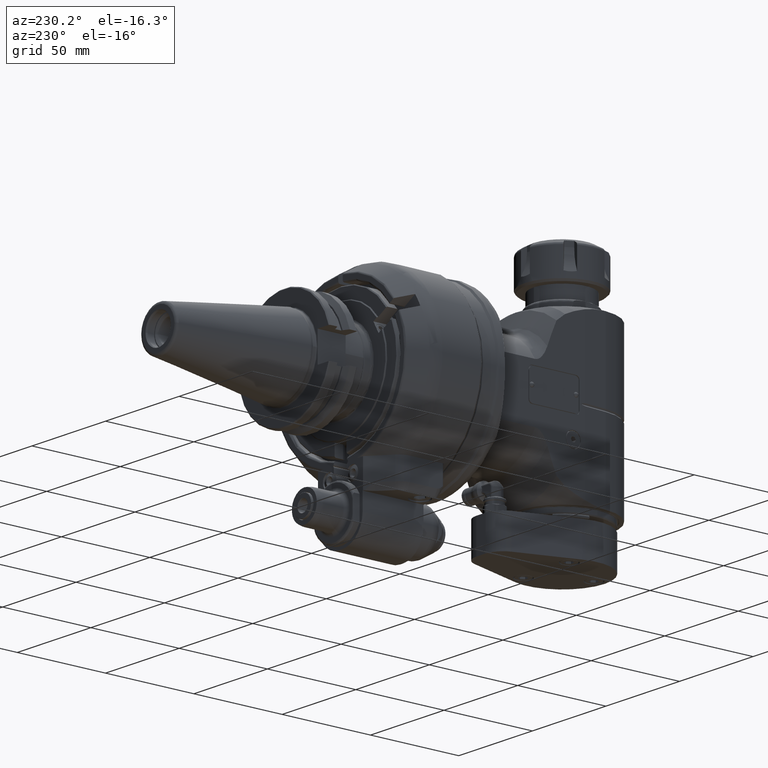
[diagram: clean part render]
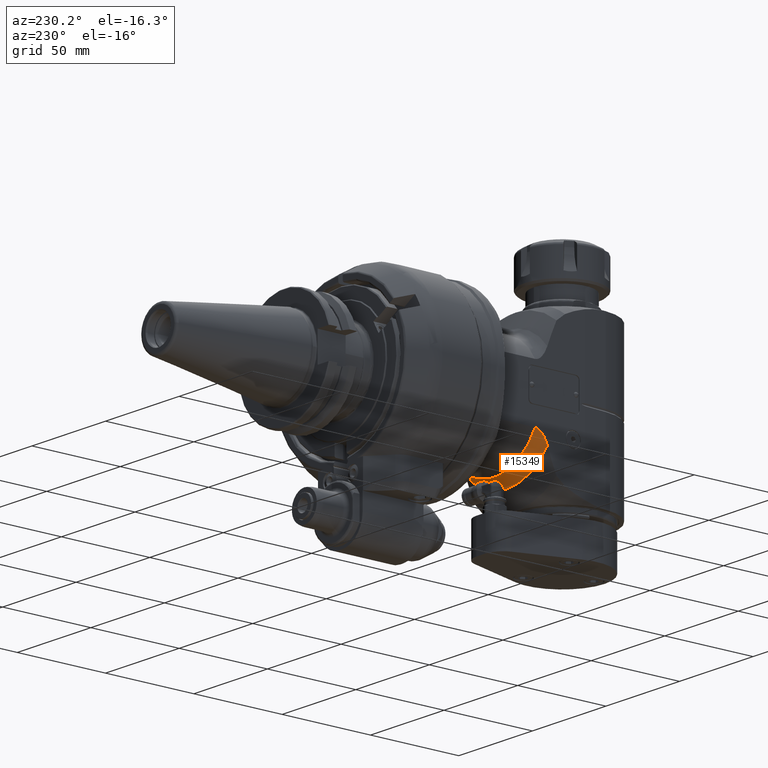
[diagram: same view with one face highlighted and labeled with its STEP entity id]
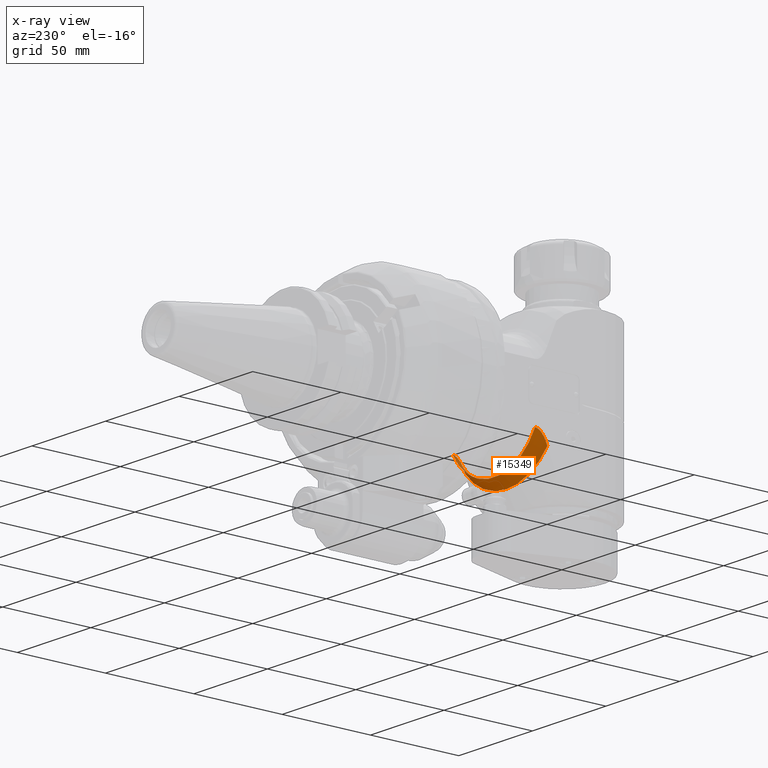
[diagram: x-ray of the same camera — body ghosted, the highlighted face saturated]
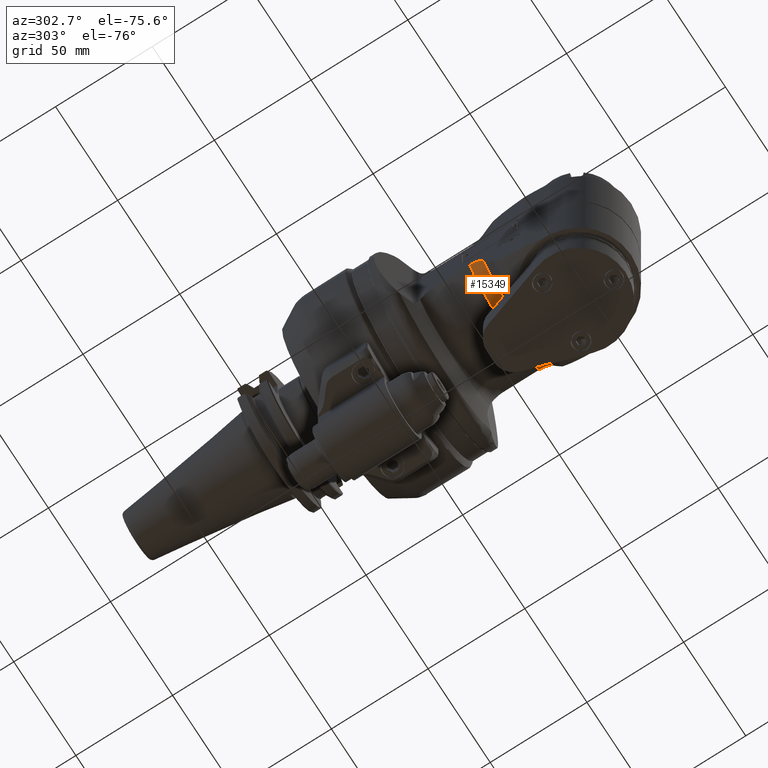
[diagram: same view with one face highlighted and labeled with its STEP entity id]
A machine part, auxiliary view. The second image highlights one B-rep face of the part: STEP entity #15349.
The next image is the same camera in x-ray: the body ghosted, the highlighted face saturated — about 5% of this face is hidden behind the body in this view.
A second angle (auxiliary view) of the same face is appended — the face is thin or edge-on in the first view.
In plain terms, the highlighted toroidal blend (fillet) surface has major radius 40 mm and minor (blend) radius 8 mm.
Its self-contained STEP definition (entity closure, byte-faithful):
#279=TOROIDAL_SURFACE('',#16333,40.,8.);
#496=B_SPLINE_CURVE_WITH_KNOTS('',3,(#22772,#22773,#22774,#22775,#22776,
#22777,#22778,#22779,#22780,#22781,#22782,#22783,#22784,#22785),
 .UNSPECIFIED.,.F.,.F.,(4,2,2,2,2,2,4),(-2.93597407218818,-2.82337724519285,
-2.69378102431655,-2.51186335157645,-2.32994567883634,-2.09341832628399,
-1.94886990203757),.UNSPECIFIED.);
#511=B_SPLINE_CURVE_WITH_KNOTS('',3,(#23102,#23103,#23104,#23105,#23106,
#23107,#23108,#23109,#23110,#23111,#23112,#23113,#23114,#23115),
 .UNSPECIFIED.,.F.,.F.,(4,2,2,2,2,2,4),(2.93597407218818,3.04857089918351,
3.17816712005981,3.36008479279991,3.54200246554002,3.77852981809237,3.92307824233879),
 .UNSPECIFIED.);
#1140=CIRCLE('',#16332,32.);
#1141=CIRCLE('',#16334,36.);
#1951=FACE_OUTER_BOUND('',#2846,.T.);
#2846=EDGE_LOOP('',(#10401,#10402,#10403,#10404));
#6207=VERTEX_POINT('',#22767);
#6208=VERTEX_POINT('',#22771);
#6264=VERTEX_POINT('',#23099);
#6265=VERTEX_POINT('',#23101);
#7853=EDGE_CURVE('',#6208,#6207,#496,.T.);
#7927=EDGE_CURVE('',#6264,#6265,#511,.T.);
#7955=EDGE_CURVE('',#6264,#6208,#1140,.T.);
#7956=EDGE_CURVE('',#6207,#6265,#1141,.T.);
#10401=ORIENTED_EDGE('',*,*,#7956,.T.);
#10402=ORIENTED_EDGE('',*,*,#7927,.F.);
#10403=ORIENTED_EDGE('',*,*,#7955,.T.);
#10404=ORIENTED_EDGE('',*,*,#7853,.T.);
#15349=ADVANCED_FACE('',(#1951),#279,.F.);
#16332=AXIS2_PLACEMENT_3D('',#23234,#18198,#18199);
#16333=AXIS2_PLACEMENT_3D('',#23235,#18200,#18201);
#16334=AXIS2_PLACEMENT_3D('',#23236,#18202,#18203);
#18198=DIRECTION('center_axis',(1.,0.,0.));
#18199=DIRECTION('ref_axis',(0.,1.,0.));
#18200=DIRECTION('center_axis',(1.,0.,0.));
#18201=DIRECTION('ref_axis',(0.,1.,1.22464679914735E-16));
#18202=DIRECTION('center_axis',(-1.,0.,0.));
#18203=DIRECTION('ref_axis',(0.,0.628539361054693,0.777777777777791));
#22767=CARTESIAN_POINT('',(58.30940107676,22.62741699797,28.));
#22771=CARTESIAN_POINT('',(51.38119784648,15.49193338483,28.));
#22772=CARTESIAN_POINT('Ctrl Pts',(51.38119784648,15.4919333848297,28.));
#22773=CARTESIAN_POINT('Ctrl Pts',(51.7565206031311,15.4919333848297,28.));
#22774=CARTESIAN_POINT('Ctrl Pts',(52.201408746999,15.5620993782773,28.));
#22775=CARTESIAN_POINT('Ctrl Pts',(52.9735728260955,15.7977099228234,28.));
#22776=CARTESIAN_POINT('Ctrl Pts',(53.4402390877892,16.0234209939818,28.));
#22777=CARTESIAN_POINT('Ctrl Pts',(54.317498824113,16.5789816504194,28.));
#22778=CARTESIAN_POINT('Ctrl Pts',(54.820668957877,17.0081024201193,28.));
#22779=CARTESIAN_POINT('Ctrl Pts',(55.7304165671847,17.9652022129463,28.));
#22780=CARTESIAN_POINT('Ctrl Pts',(56.138105696541,18.4921239661789,28.));
#22781=CARTESIAN_POINT('Ctrl Pts',(56.9216365696334,19.6460707325903,28.));
#22782=CARTESIAN_POINT('Ctrl Pts',(57.3473059591154,20.3989143849032,28.));
#22783=CARTESIAN_POINT('Ctrl Pts',(57.9345741249346,21.6588360308126,28.));
#22784=CARTESIAN_POINT('Ctrl Pts',(58.1351990449167,22.1473726465381,28.));
#22785=CARTESIAN_POINT('Ctrl Pts',(58.3094010767562,22.6274169979714,28.));
#23099=CARTESIAN_POINT('',(51.38119784648,15.49193338483,-28.));
#23101=CARTESIAN_POINT('',(58.30940107676,22.62741699797,-28.));
#23102=CARTESIAN_POINT('Ctrl Pts',(51.38119784648,15.4919333848297,-28.));
#23103=CARTESIAN_POINT('Ctrl Pts',(51.7565206031311,15.4919333848297,-28.));
#23104=CARTESIAN_POINT('Ctrl Pts',(52.201408746999,15.5620993782773,-28.));
#23105=CARTESIAN_POINT('Ctrl Pts',(52.9735728260955,15.7977099228234,-28.));
#23106=CARTESIAN_POINT('Ctrl Pts',(53.4402390877892,16.0234209939819,-28.));
#23107=CARTESIAN_POINT('Ctrl Pts',(54.317498824113,16.5789816504194,-28.));
#23108=CARTESIAN_POINT('Ctrl Pts',(54.8206689578771,17.0081024201193,-28.));
#23109=CARTESIAN_POINT('Ctrl Pts',(55.7304165671847,17.9652022129463,-28.));
#23110=CARTESIAN_POINT('Ctrl Pts',(56.138105696541,18.492123966179,-28.));
#23111=CARTESIAN_POINT('Ctrl Pts',(56.9216365696334,19.6460707325903,-28.));
#23112=CARTESIAN_POINT('Ctrl Pts',(57.3473059591154,20.3989143849032,-28.));
#23113=CARTESIAN_POINT('Ctrl Pts',(57.9345741249346,21.6588360308127,-28.));
#23114=CARTESIAN_POINT('Ctrl Pts',(58.1351990449167,22.1473726465381,-28.));
#23115=CARTESIAN_POINT('Ctrl Pts',(58.3094010767562,22.6274169979714,-28.));
#23234=CARTESIAN_POINT('Origin',(51.38119784648,0.,0.));
#23235=CARTESIAN_POINT('Origin',(51.38119784648,0.,0.));
#23236=CARTESIAN_POINT('Origin',(58.30940107676,0.,0.));